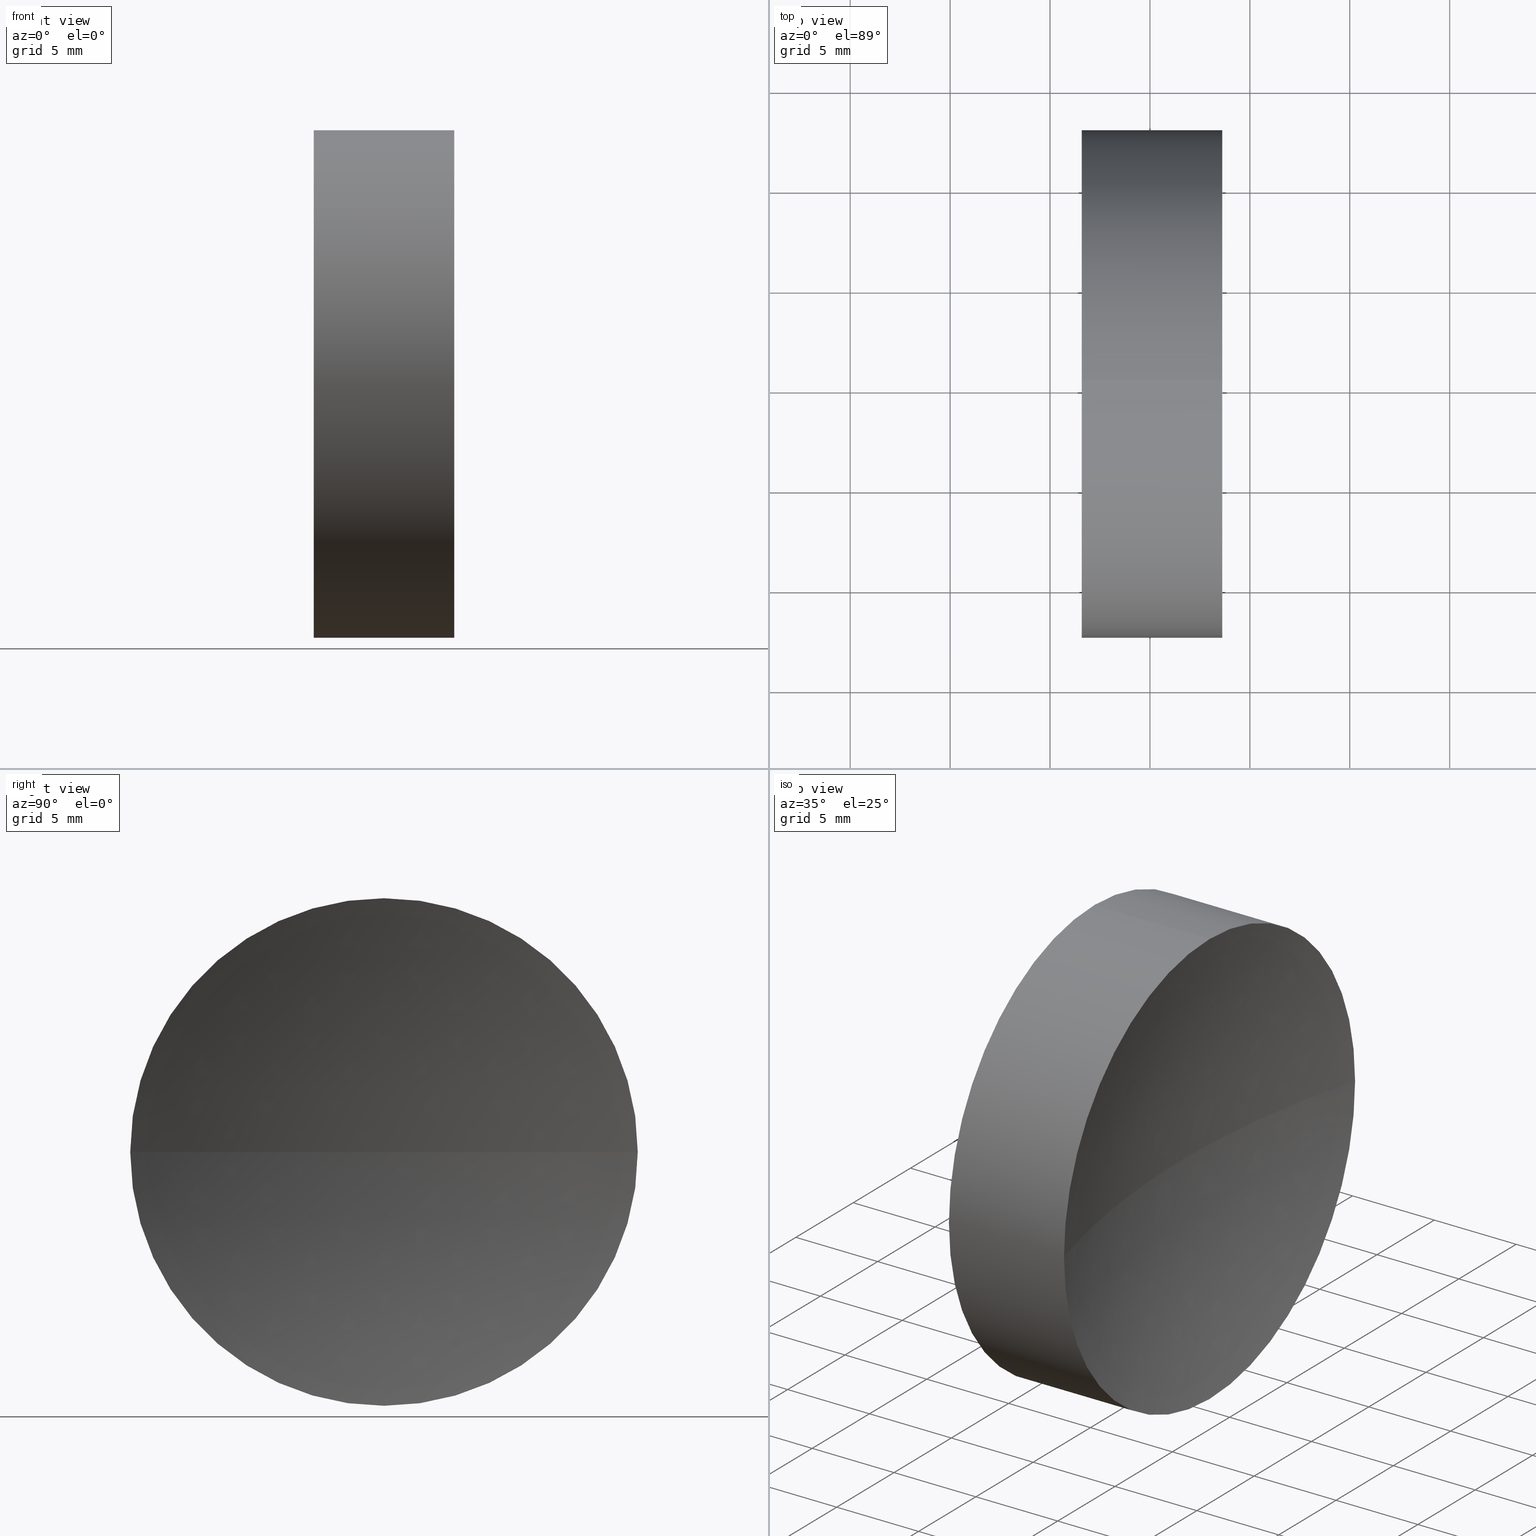
[diagram: canonical four-view strip — front | top / right | iso, engineering-drawing reading convention]
A machine part, canonical four-view strip (front | top / right | iso — engineering-drawing reading convention). The complete STEP part file that produces these views, byte-faithful:
ISO-10303-21;
HEADER;
FILE_DESCRIPTION (( 'STEP AP214' ),
    '1' );
FILE_NAME ('130058.STEP',
    '2019-07-02T06:05:41',
    ( '' ),
    ( '' ),
    'SwSTEP 2.0',
    'SolidWorks 2016',
    '' );
FILE_SCHEMA (( 'AUTOMOTIVE_DESIGN' ));
ENDSEC;

DATA;
#1 = AXIS2_PLACEMENT_3D ( 'NONE', #130, #61, #63 ) ;
#2 = VECTOR ( 'NONE', #206, 1000.000000000000000 ) ;
#3 = CARTESIAN_POINT ( 'NONE',  ( 118.3527034462293400, 65.22260287298738000, 0.0000000000000000000 ) ) ;
#4 = EDGE_LOOP ( 'NONE', ( #119, #12, #98, #156 ) ) ;
#5 = ADVANCED_FACE ( 'NONE', ( #112 ), #19, .T. ) ;
#6 = DIRECTION ( 'NONE',  ( 0.0000000000000000000, 0.0000000000000000000, -1.000000000000000000 ) ) ;
#7 = LINE ( 'NONE', #179, #27 ) ;
#8 = CARTESIAN_POINT ( 'NONE',  ( 71.75270344622933300, 65.22260287298738000, 0.0000000000000000000 ) ) ;
#9 = ADVANCED_FACE ( 'NONE', ( #64 ), #195, .T. ) ;
#10 = AXIS2_PLACEMENT_3D ( 'NONE', #69, #192, #208 ) ;
#12 = ORIENTED_EDGE ( 'NONE', *, *, #83, .F. ) ;
#11 = CARTESIAN_POINT ( 'NONE',  ( 123.6166688312012100, 65.22260287298739500, 12.69999999999998700 ) ) ;
#13 = FILL_AREA_STYLE_COLOUR ( '', #225 ) ;
#14 = SPHERICAL_SURFACE ( 'NONE', #21, 46.60000000000000100 ) ;
#15 = APPLICATION_CONTEXT ( 'automotive_design' ) ;
#16 = VERTEX_POINT ( 'NONE', #217 ) ;
#17 = CIRCLE ( 'NONE', #159, 12.69999999999997400 ) ;
#18 =( NAMED_UNIT ( * ) PLANE_ANGLE_UNIT ( ) SI_UNIT ( $, .RADIAN. ) );
#19 = CYLINDRICAL_SURFACE ( 'NONE', #104, 12.69999999999998200 ) ;
#20 = VERTEX_POINT ( 'NONE', #162 ) ;
#21 = AXIS2_PLACEMENT_3D ( 'NONE', #8, #184, #149 ) ;
#22 = CIRCLE ( 'NONE', #122, 46.60000000000019300 ) ;
#23 = PRODUCT_DEFINITION_SHAPE ( 'NONE', 'NONE',  #226 ) ;
#24 = DIRECTION ( 'NONE',  ( 0.0000000000000000000, 0.0000000000000000000, 1.000000000000000000 ) ) ;
#25 = SURFACE_STYLE_USAGE ( .BOTH. , #58 ) ;
#26 = DIRECTION ( 'NONE',  ( 0.0000000000000000000, 1.000000000000000000, 1.224646799147353200E-016 ) ) ;
#27 = VECTOR ( 'NONE', #172, 1000.000000000000000 ) ;
#28 =( NAMED_UNIT ( * ) SI_UNIT ( $, .STERADIAN. ) SOLID_ANGLE_UNIT ( ) );
#29 = FILL_AREA_STYLE ('',( #131 ) ) ;
#30 = VERTEX_POINT ( 'NONE', #177 ) ;
#31 = PRODUCT_CONTEXT ( 'NONE', #15, 'mechanical' ) ;
#32 = AXIS2_PLACEMENT_3D ( 'NONE', #165, #123, #163 ) ;
#33 = SURFACE_STYLE_FILL_AREA ( #29 ) ;
#34 = CARTESIAN_POINT ( 'NONE',  ( 168.4527034462295200, 65.22260287298738000, 0.0000000000000000000 ) ) ;
#35 = PRESENTATION_LAYER_ASSIGNMENT (  '', '', ( #74 ) ) ;
#36 = AXIS2_PLACEMENT_3D ( 'NONE', #183, #199, #92 ) ;
#37 = CARTESIAN_POINT ( 'NONE',  ( 121.8527034462293400, 65.22260287298738000, 0.0000000000000000000 ) ) ;
#39 = EDGE_LOOP ( 'NONE', ( #70, #87, #59, #108, #88, #197 ) ) ;
#38 =( NAMED_UNIT ( * ) SI_UNIT ( $, .STERADIAN. ) SOLID_ANGLE_UNIT ( ) );
#40 = DIRECTION ( 'NONE',  ( 0.0000000000000000000, 0.0000000000000000000, 1.000000000000000000 ) ) ;
#41 =( GEOMETRIC_REPRESENTATION_CONTEXT ( 3 ) GLOBAL_UNCERTAINTY_ASSIGNED_CONTEXT ( ( #53 ) ) GLOBAL_UNIT_ASSIGNED_CONTEXT ( ( #101, #18, #28 ) ) REPRESENTATION_CONTEXT ( 'NONE', 'WORKASPACE' ) );
#42 = ADVANCED_FACE ( 'NONE', ( #109 ), #152, .F. ) ;
#43 = FACE_OUTER_BOUND ( 'NONE', #160, .T. ) ;
#44 = ORIENTED_EDGE ( 'NONE', *, *, #141, .T. ) ;
#45 = DIRECTION ( 'NONE',  ( -1.000000000000000000, -0.0000000000000000000, -0.0000000000000000000 ) ) ;
#46 = ORIENTED_EDGE ( 'NONE', *, *, #193, .F. ) ;
#47 = PRODUCT ( '130058', '130058', '', ( #31 ) ) ;
#48 = LINE ( 'NONE', #65, #2 ) ;
#49 = CARTESIAN_POINT ( 'NONE',  ( 109.9369352260864600, 65.22260287298739500, 0.0000000000000000000 ) ) ;
#50 = VERTEX_POINT ( 'NONE', #37 ) ;
#51 = VERTEX_POINT ( 'NONE', #211 ) ;
#52 = PRESENTATION_LAYER_ASSIGNMENT (  '', '', ( #154 ) ) ;
#53 = UNCERTAINTY_MEASURE_WITH_UNIT (LENGTH_MEASURE( 1.000000000000000100E-005 ), #101, 'distance_accuracy_value', 'NONE');
#54 = ORIENTED_EDGE ( 'NONE', *, *, #144, .T. ) ;
#55 = DIRECTION ( 'NONE',  ( -1.000000000000000000, -0.0000000000000000000, -0.0000000000000000000 ) ) ;
#56 = SURFACE_STYLE_FILL_AREA ( #200 ) ;
#57 = CARTESIAN_POINT ( 'NONE',  ( 123.6166688312012100, 65.22260287298739500, 0.0000000000000000000 ) ) ;
#59 = ORIENTED_EDGE ( 'NONE', *, *, #212, .T. ) ;
#58 = SURFACE_SIDE_STYLE ('',( #56 ) ) ;
#60 = CIRCLE ( 'NONE', #10, 46.60000000000000100 ) ;
#61 = DIRECTION ( 'NONE',  ( 0.0000000000000000000, 0.0000000000000000000, 1.000000000000000000 ) ) ;
#62 = EDGE_LOOP ( 'NONE', ( #54, #103, #182, #46, #142, #185 ) ) ;
#63 = DIRECTION ( 'NONE',  ( 1.000000000000000000, 0.0000000000000000000, 0.0000000000000000000 ) ) ;
#64 = FACE_OUTER_BOUND ( 'NONE', #39, .T. ) ;
#65 = CARTESIAN_POINT ( 'NONE',  ( 109.9369352260864600, 65.22260287298739500, -12.69999999999998200 ) ) ;
#66 = VERTEX_POINT ( 'NONE', #3 ) ;
#67 = MECHANICAL_DESIGN_GEOMETRIC_PRESENTATION_REPRESENTATION (  '', ( #74 ), #180 ) ;
#68 = SPHERICAL_SURFACE ( 'NONE', #32, 46.60000000000000100 ) ;
#69 = CARTESIAN_POINT ( 'NONE',  ( 71.75270344622933300, 65.22260287298738000, 0.0000000000000000000 ) ) ;
#70 = ORIENTED_EDGE ( 'NONE', *, *, #227, .F. ) ;
#71 = UNCERTAINTY_MEASURE_WITH_UNIT (LENGTH_MEASURE( 1.000000000000000100E-005 ), #147, 'distance_accuracy_value', 'NONE');
#72 = CIRCLE ( 'NONE', #107, 46.60000000000019300 ) ;
#73 = DIRECTION ( 'NONE',  ( 0.0000000000000000000, 1.000000000000000000, 0.0000000000000000000 ) ) ;
#74 = STYLED_ITEM ( 'NONE', ( #135 ), #161 ) ;
#75 =( NAMED_UNIT ( * ) PLANE_ANGLE_UNIT ( ) SI_UNIT ( $, .RADIAN. ) );
#76 = AXIS2_PLACEMENT_3D ( 'NONE', #129, #146, #222 ) ;
#77 = DIRECTION ( 'NONE',  ( 0.0000000000000000000, 0.0000000000000000000, 1.000000000000000000 ) ) ;
#78 = ADVANCED_FACE ( 'NONE', ( #90 ), #68, .F. ) ;
#79 = CARTESIAN_POINT ( 'NONE',  ( 116.5887380612574700, 65.22260287298739500, 0.0000000000000000000 ) ) ;
#80 = CARTESIAN_POINT ( 'NONE',  ( 123.6166688312012100, 65.22260287298739500, 0.0000000000000000000 ) ) ;
#81 = EDGE_CURVE ( 'NONE', #66, #30, #60, .T. ) ;
#82 = ORIENTED_EDGE ( 'NONE', *, *, #212, .F. ) ;
#83 = EDGE_CURVE ( 'NONE', #20, #51, #102, .T. ) ;
#84 = SURFACE_STYLE_USAGE ( .BOTH. , #133 ) ;
#85 = PRODUCT_RELATED_PRODUCT_CATEGORY ( 'part', '', ( #47 ) ) ;
#86 = APPLICATION_PROTOCOL_DEFINITION ( 'draft international standard', 'automotive_design', 1998, #175 ) ;
#87 = ORIENTED_EDGE ( 'NONE', *, *, #83, .T. ) ;
#88 = ORIENTED_EDGE ( 'NONE', *, *, #141, .F. ) ;
#89 = CARTESIAN_POINT ( 'NONE',  ( 109.9369352260864600, 65.22260287298739500, 0.0000000000000000000 ) ) ;
#90 = FACE_OUTER_BOUND ( 'NONE', #178, .T. ) ;
#91 = EDGE_CURVE ( 'NONE', #215, #93, #7, .T. ) ;
#92 = DIRECTION ( 'NONE',  ( 0.0000000000000000000, 0.0000000000000000000, 1.000000000000000000 ) ) ;
#93 = VERTEX_POINT ( 'NONE', #166 ) ;
#94 = MANIFOLD_SOLID_BREP ( '��ת1', #232 ) ;
#95 = ADVANCED_FACE ( 'NONE', ( #43 ), #139, .F. ) ;
#96 = DIRECTION ( 'NONE',  ( 0.0000000000000000000, 0.0000000000000000000, 1.000000000000000000 ) ) ;
#97 = EDGE_CURVE ( 'NONE', #215, #181, #105, .T. ) ;
#98 = ORIENTED_EDGE ( 'NONE', *, *, #144, .F. ) ;
#99 = AXIS2_PLACEMENT_3D ( 'NONE', #153, #118, #155 ) ;
#100 = DIRECTION ( 'NONE',  ( -1.000000000000000000, -0.0000000000000000000, -0.0000000000000000000 ) ) ;
#101 =( LENGTH_UNIT ( ) NAMED_UNIT ( * ) SI_UNIT ( .MILLI., .METRE. ) );
#102 = CIRCLE ( 'NONE', #134, 12.69999999999998900 ) ;
#103 = ORIENTED_EDGE ( 'NONE', *, *, #227, .T. ) ;
#104 = AXIS2_PLACEMENT_3D ( 'NONE', #89, #138, #24 ) ;
#105 = CIRCLE ( 'NONE', #140, 12.69999999999998900 ) ;
#106 = CIRCLE ( 'NONE', #76, 12.69999999999998900 ) ;
#107 = AXIS2_PLACEMENT_3D ( 'NONE', #151, #127, #26 ) ;
#108 = ORIENTED_EDGE ( 'NONE', *, *, #91, .T. ) ;
#109 = FACE_OUTER_BOUND ( 'NONE', #4, .T. ) ;
#110 = AXIS2_PLACEMENT_3D ( 'NONE', #224, #6, #116 ) ;
#111 = DIRECTION ( 'NONE',  ( 1.000000000000000000, 0.0000000000000000000, 0.0000000000000000000 ) ) ;
#112 = FACE_OUTER_BOUND ( 'NONE', #62, .T. ) ;
#113 = DIRECTION ( 'NONE',  ( 0.0000000000000000000, 1.224646799147353200E-016, -1.000000000000000000 ) ) ;
#114 = DIRECTION ( 'NONE',  ( 0.0000000000000000000, 0.0000000000000000000, 1.000000000000000000 ) ) ;
#115 = CIRCLE ( 'NONE', #99, 12.69999999999997400 ) ;
#116 = DIRECTION ( 'NONE',  ( 0.0000000000000000000, 1.000000000000000000, 0.0000000000000000000 ) ) ;
#117 =( NAMED_UNIT ( * ) PLANE_ANGLE_UNIT ( ) SI_UNIT ( $, .RADIAN. ) );
#118 = DIRECTION ( 'NONE',  ( -1.000000000000000000, -0.0000000000000000000, -0.0000000000000000000 ) ) ;
#119 = ORIENTED_EDGE ( 'NONE', *, *, #157, .F. ) ;
#120 = AXIS2_PLACEMENT_3D ( 'NONE', #79, #55, #40 ) ;
#121 = CIRCLE ( 'NONE', #150, 46.60000000000000100 ) ;
#122 = AXIS2_PLACEMENT_3D ( 'NONE', #220, #114, #111 ) ;
#123 = DIRECTION ( 'NONE',  ( 0.0000000000000000000, 0.0000000000000000000, -1.000000000000000000 ) ) ;
#124 = ORIENTED_EDGE ( 'NONE', *, *, #81, .F. ) ;
#125 = AXIS2_PLACEMENT_3D ( 'NONE', #34, #145, #73 ) ;
#126 = DIRECTION ( 'NONE',  ( -1.000000000000000000, -0.0000000000000000000, -0.0000000000000000000 ) ) ;
#128 = ORIENTED_EDGE ( 'NONE', *, *, #218, .T. ) ;
#127 = DIRECTION ( 'NONE',  ( 0.0000000000000000000, 1.224646799147353200E-016, -1.000000000000000000 ) ) ;
#129 = CARTESIAN_POINT ( 'NONE',  ( 123.6166688312012100, 65.22260287298739500, 0.0000000000000000000 ) ) ;
#130 = CARTESIAN_POINT ( 'NONE',  ( 0.0000000000000000000, 0.0000000000000000000, 0.0000000000000000000 ) ) ;
#131 = FILL_AREA_STYLE_COLOUR ( '', #143 ) ;
#132 = ORIENTED_EDGE ( 'NONE', *, *, #167, .F. ) ;
#133 = SURFACE_SIDE_STYLE ('',( #33 ) ) ;
#134 = AXIS2_PLACEMENT_3D ( 'NONE', #202, #204, #170 ) ;
#135 = PRESENTATION_STYLE_ASSIGNMENT (( #84 ) ) ;
#136 = AXIS2_PLACEMENT_3D ( 'NONE', #49, #216, #198 ) ;
#137 = VERTEX_POINT ( 'NONE', #223 ) ;
#138 = DIRECTION ( 'NONE',  ( -1.000000000000000000, -0.0000000000000000000, -0.0000000000000000000 ) ) ;
#139 = SPHERICAL_SURFACE ( 'NONE', #110, 46.60000000000019300 ) ;
#140 = AXIS2_PLACEMENT_3D ( 'NONE', #57, #126, #77 ) ;
#141 = EDGE_CURVE ( 'NONE', #16, #93, #164, .T. ) ;
#142 = ORIENTED_EDGE ( 'NONE', *, *, #91, .F. ) ;
#143 = COLOUR_RGB ( '',1.000000000000000000, 1.000000000000000000, 1.000000000000000000 ) ;
#144 = EDGE_CURVE ( 'NONE', #181, #20, #106, .T. ) ;
#145 = DIRECTION ( 'NONE',  ( 0.0000000000000000000, 0.0000000000000000000, -1.000000000000000000 ) ) ;
#146 = DIRECTION ( 'NONE',  ( -1.000000000000000000, -0.0000000000000000000, -0.0000000000000000000 ) ) ;
#147 =( LENGTH_UNIT ( ) NAMED_UNIT ( * ) SI_UNIT ( .MILLI., .METRE. ) );
#148 = CARTESIAN_POINT ( 'NONE',  ( 71.75270344622933300, 65.22260287298738000, 0.0000000000000000000 ) ) ;
#149 = DIRECTION ( 'NONE',  ( 0.0000000000000000000, 1.000000000000000000, 0.0000000000000000000 ) ) ;
#150 = AXIS2_PLACEMENT_3D ( 'NONE', #148, #113, #171 ) ;
#151 = CARTESIAN_POINT ( 'NONE',  ( 168.4527034462295200, 65.22260287298738000, 0.0000000000000000000 ) ) ;
#152 = SPHERICAL_SURFACE ( 'NONE', #125, 46.60000000000019300 ) ;
#153 = CARTESIAN_POINT ( 'NONE',  ( 116.5887380612574700, 65.22260287298739500, 0.0000000000000000000 ) ) ;
#154 = STYLED_ITEM ( 'NONE', ( #207 ), #94 ) ;
#155 = DIRECTION ( 'NONE',  ( 0.0000000000000000000, 0.0000000000000000000, 1.000000000000000000 ) ) ;
#156 = ORIENTED_EDGE ( 'NONE', *, *, #167, .T. ) ;
#157 = EDGE_CURVE ( 'NONE', #51, #50, #72, .T. ) ;
#158 = CIRCLE ( 'NONE', #120, 12.69999999999997400 ) ;
#159 = AXIS2_PLACEMENT_3D ( 'NONE', #205, #100, #229 ) ;
#160 = EDGE_LOOP ( 'NONE', ( #82, #221, #132, #190 ) ) ;
#161 = ADVANCED_BREP_SHAPE_REPRESENTATION ( '130058', ( #94, #1 ), #41 ) ;
#162 = CARTESIAN_POINT ( 'NONE',  ( 123.6166688312012100, 65.22260287298739500, -12.69999999999998700 ) ) ;
#163 = DIRECTION ( 'NONE',  ( 0.0000000000000000000, 1.000000000000000000, 0.0000000000000000000 ) ) ;
#164 = CIRCLE ( 'NONE', #36, 12.69999999999997400 ) ;
#165 = CARTESIAN_POINT ( 'NONE',  ( 71.75270344622933300, 65.22260287298738000, 0.0000000000000000000 ) ) ;
#166 = CARTESIAN_POINT ( 'NONE',  ( 116.5887380612574700, 65.22260287298739500, 12.69999999999997400 ) ) ;
#167 = EDGE_CURVE ( 'NONE', #181, #50, #22, .T. ) ;
#168 = ORIENTED_EDGE ( 'NONE', *, *, #193, .T. ) ;
#169 = AXIS2_PLACEMENT_3D ( 'NONE', #80, #45, #96 ) ;
#170 = DIRECTION ( 'NONE',  ( 0.0000000000000000000, 0.0000000000000000000, 1.000000000000000000 ) ) ;
#171 = DIRECTION ( 'NONE',  ( 0.0000000000000000000, 1.000000000000000000, 1.224646799147353200E-016 ) ) ;
#172 = DIRECTION ( 'NONE',  ( -1.000000000000000000, -0.0000000000000000000, -0.0000000000000000000 ) ) ;
#173 =( LENGTH_UNIT ( ) NAMED_UNIT ( * ) SI_UNIT ( .MILLI., .METRE. ) );
#174 = APPLICATION_PROTOCOL_DEFINITION ( 'draft international standard', 'automotive_design', 1998, #15 ) ;
#175 = APPLICATION_CONTEXT ( 'automotive_design' ) ;
#176 = ORIENTED_EDGE ( 'NONE', *, *, #196, .F. ) ;
#177 = CARTESIAN_POINT ( 'NONE',  ( 116.5887380612574700, 77.92260287298735500, 0.0000000000000000000 ) ) ;
#178 = EDGE_LOOP ( 'NONE', ( #176, #194, #128, #213 ) ) ;
#179 = CARTESIAN_POINT ( 'NONE',  ( 109.9369352260864600, 65.22260287298739500, 12.69999999999998200 ) ) ;
#180 =( GEOMETRIC_REPRESENTATION_CONTEXT ( 3 ) GLOBAL_UNCERTAINTY_ASSIGNED_CONTEXT ( ( #203 ) ) GLOBAL_UNIT_ASSIGNED_CONTEXT ( ( #173, #117, #188 ) ) REPRESENTATION_CONTEXT ( 'NONE', 'WORKASPACE' ) );
#181 = VERTEX_POINT ( 'NONE', #186 ) ;
#182 = ORIENTED_EDGE ( 'NONE', *, *, #218, .F. ) ;
#183 = CARTESIAN_POINT ( 'NONE',  ( 116.5887380612574700, 65.22260287298739500, 0.0000000000000000000 ) ) ;
#184 = DIRECTION ( 'NONE',  ( 0.0000000000000000000, 0.0000000000000000000, -1.000000000000000000 ) ) ;
#185 = ORIENTED_EDGE ( 'NONE', *, *, #97, .T. ) ;
#186 = CARTESIAN_POINT ( 'NONE',  ( 123.6166688312012100, 77.92260287298738300, 0.0000000000000000000 ) ) ;
#187 = ORIENTED_EDGE ( 'NONE', *, *, #196, .T. ) ;
#188 =( NAMED_UNIT ( * ) SI_UNIT ( $, .STERADIAN. ) SOLID_ANGLE_UNIT ( ) );
#189 = CIRCLE ( 'NONE', #169, 12.69999999999998900 ) ;
#190 = ORIENTED_EDGE ( 'NONE', *, *, #97, .F. ) ;
#191 = PRODUCT_DEFINITION_CONTEXT ( 'detailed design', #175, 'design' ) ;
#192 = DIRECTION ( 'NONE',  ( 0.0000000000000000000, 0.0000000000000000000, 1.000000000000000000 ) ) ;
#193 = EDGE_CURVE ( 'NONE', #93, #30, #158, .T. ) ;
#194 = ORIENTED_EDGE ( 'NONE', *, *, #81, .T. ) ;
#195 = CYLINDRICAL_SURFACE ( 'NONE', #136, 12.69999999999998200 ) ;
#196 = EDGE_CURVE ( 'NONE', #66, #16, #121, .T. ) ;
#197 = ORIENTED_EDGE ( 'NONE', *, *, #209, .F. ) ;
#198 = DIRECTION ( 'NONE',  ( 0.0000000000000000000, 0.0000000000000000000, 1.000000000000000000 ) ) ;
#199 = DIRECTION ( 'NONE',  ( -1.000000000000000000, -0.0000000000000000000, -0.0000000000000000000 ) ) ;
#200 = FILL_AREA_STYLE ('',( #13 ) ) ;
#201 = ADVANCED_FACE ( 'NONE', ( #210 ), #14, .F. ) ;
#202 = CARTESIAN_POINT ( 'NONE',  ( 123.6166688312012100, 65.22260287298739500, 0.0000000000000000000 ) ) ;
#203 = UNCERTAINTY_MEASURE_WITH_UNIT (LENGTH_MEASURE( 1.000000000000000100E-005 ), #173, 'distance_accuracy_value', 'NONE');
#204 = DIRECTION ( 'NONE',  ( -1.000000000000000000, -0.0000000000000000000, -0.0000000000000000000 ) ) ;
#205 = CARTESIAN_POINT ( 'NONE',  ( 116.5887380612574700, 65.22260287298739500, 0.0000000000000000000 ) ) ;
#206 = DIRECTION ( 'NONE',  ( -1.000000000000000000, -0.0000000000000000000, -0.0000000000000000000 ) ) ;
#207 = PRESENTATION_STYLE_ASSIGNMENT (( #25 ) ) ;
#208 = DIRECTION ( 'NONE',  ( 1.000000000000000000, 0.0000000000000000000, 0.0000000000000000000 ) ) ;
#209 = EDGE_CURVE ( 'NONE', #137, #16, #17, .T. ) ;
#210 = FACE_OUTER_BOUND ( 'NONE', #228, .T. ) ;
#211 = CARTESIAN_POINT ( 'NONE',  ( 123.6166688312012100, 52.52260287298739900, -1.555301434917135500E-015 ) ) ;
#212 = EDGE_CURVE ( 'NONE', #51, #215, #189, .T. ) ;
#213 = ORIENTED_EDGE ( 'NONE', *, *, #209, .T. ) ;
#214 =( GEOMETRIC_REPRESENTATION_CONTEXT ( 3 ) GLOBAL_UNCERTAINTY_ASSIGNED_CONTEXT ( ( #71 ) ) GLOBAL_UNIT_ASSIGNED_CONTEXT ( ( #147, #75, #38 ) ) REPRESENTATION_CONTEXT ( 'NONE', 'WORKASPACE' ) );
#215 = VERTEX_POINT ( 'NONE', #11 ) ;
#216 = DIRECTION ( 'NONE',  ( -1.000000000000000000, -0.0000000000000000000, -0.0000000000000000000 ) ) ;
#217 = CARTESIAN_POINT ( 'NONE',  ( 116.5887380612574700, 52.52260287298741300, -1.555301434917133900E-015 ) ) ;
#218 = EDGE_CURVE ( 'NONE', #30, #137, #115, .T. ) ;
#219 = MECHANICAL_DESIGN_GEOMETRIC_PRESENTATION_REPRESENTATION (  '', ( #154 ), #214 ) ;
#221 = ORIENTED_EDGE ( 'NONE', *, *, #157, .T. ) ;
#220 = CARTESIAN_POINT ( 'NONE',  ( 168.4527034462295200, 65.22260287298738000, 0.0000000000000000000 ) ) ;
#222 = DIRECTION ( 'NONE',  ( 0.0000000000000000000, 0.0000000000000000000, 1.000000000000000000 ) ) ;
#223 = CARTESIAN_POINT ( 'NONE',  ( 116.5887380612574700, 65.22260287298739500, -12.69999999999997400 ) ) ;
#224 = CARTESIAN_POINT ( 'NONE',  ( 168.4527034462295200, 65.22260287298738000, 0.0000000000000000000 ) ) ;
#225 = COLOUR_RGB ( '',1.000000000000000000, 1.000000000000000000, 1.000000000000000000 ) ;
#226 = PRODUCT_DEFINITION ( 'δ֪', '', #231, #191 ) ;
#227 = EDGE_CURVE ( 'NONE', #20, #137, #48, .T. ) ;
#228 = EDGE_LOOP ( 'NONE', ( #124, #187, #44, #168 ) ) ;
#229 = DIRECTION ( 'NONE',  ( 0.0000000000000000000, 0.0000000000000000000, 1.000000000000000000 ) ) ;
#230 = SHAPE_DEFINITION_REPRESENTATION ( #23, #161 ) ;
#231 = PRODUCT_DEFINITION_FORMATION_WITH_SPECIFIED_SOURCE ( '�κ�', '', #47, .NOT_KNOWN. ) ;
#232 = CLOSED_SHELL ( 'NONE', ( #201, #5, #95, #42, #9, #78 ) ) ;
ENDSEC;
END-ISO-10303-21;
